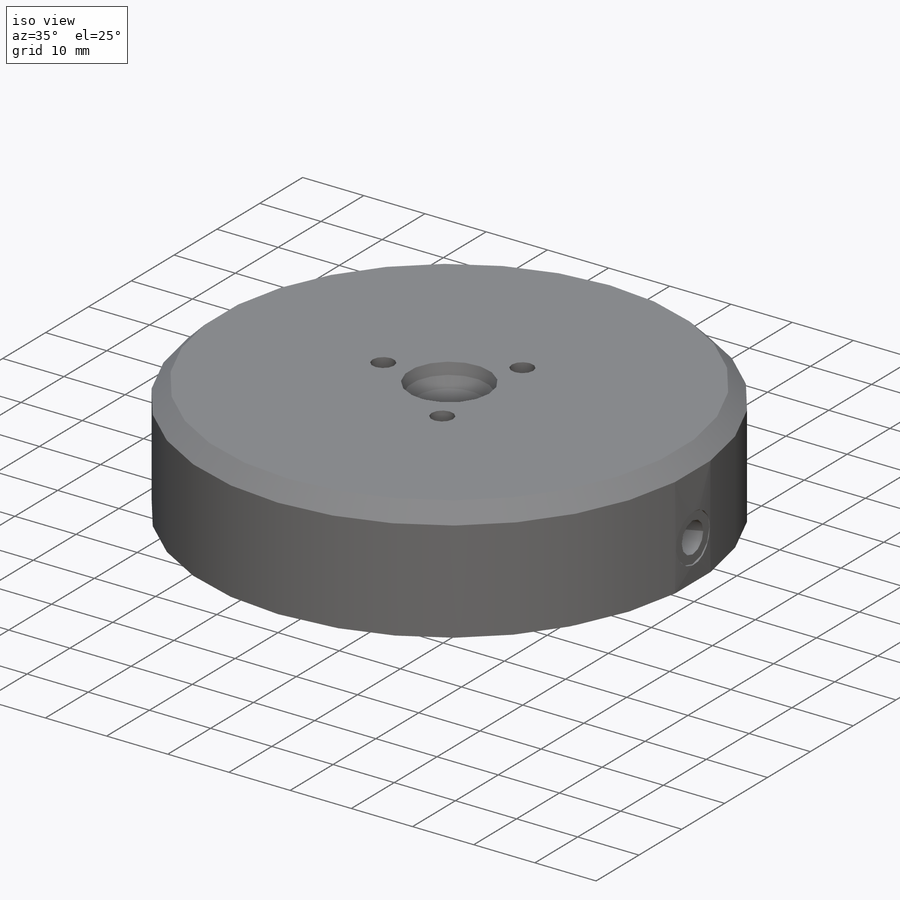
[diagram: iso view]
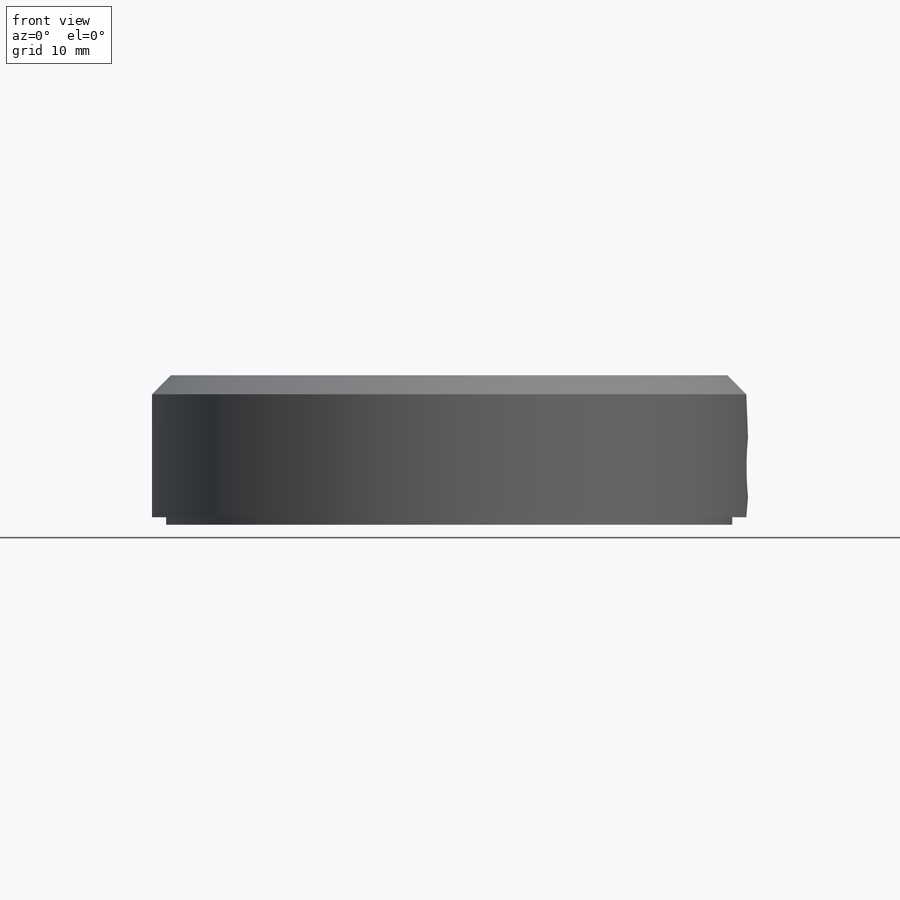
[diagram: front view]
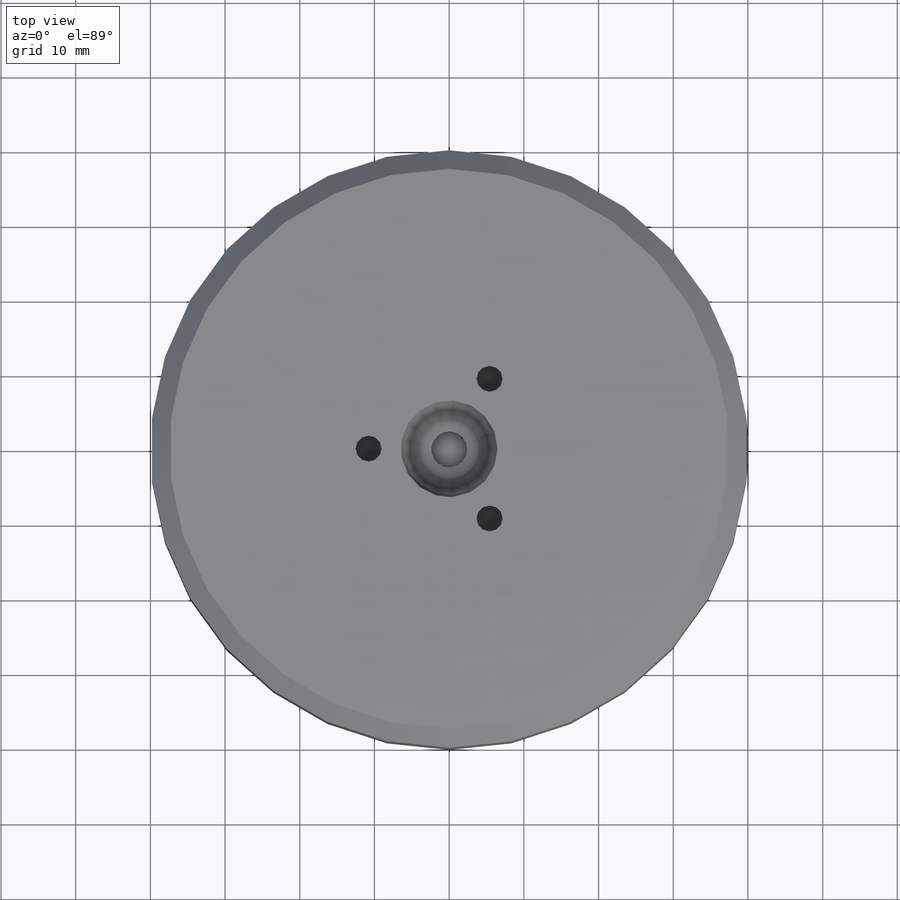
[diagram: top view]
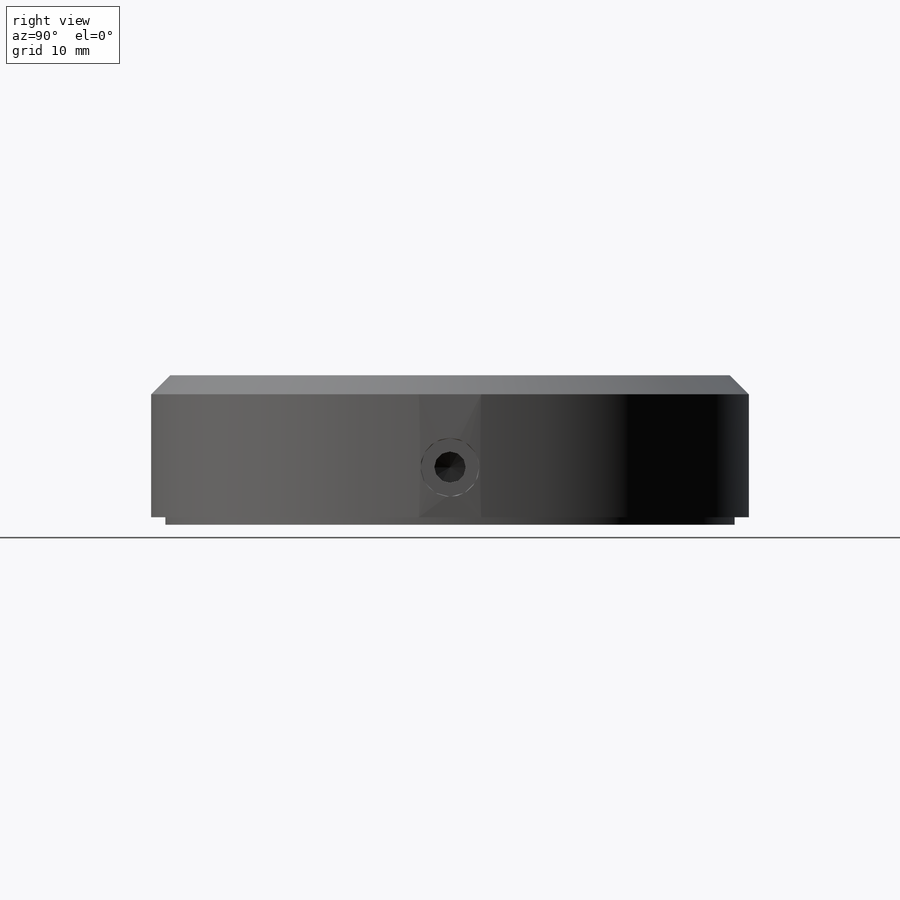
[diagram: right view]
SOLIDWORKS PART (.sldprt)
format: sldprt  version: not decoded by parser v0  size: 251,392 bytes
history: native  units: mm
features: sketch x9, hole x3, extrude x2, material x1, chamfer x1, pattern_circular x1, cut_revolve x1 (+15 scaffold rows collapsed)
feature tree (33):
  scaffold x15  (default folders/planes/origin — collapsed)
  material  "6061 Alloy"
  sketch  "Sketch1"  dims[D1=80.01mm D2=80.01mm]
  extrude  "Extrude1"  Depth=18.9992mm
  sketch  "Sketch2"  dims[D1=76.2mm]
  hole  "M5x0.8 Tapped Hole1"  Diameter=4.2mm Depth=35.56mm
  sketch  "3DSketch1"  dims[D1=12.319mm]
  sketch  "Sketch4"  dims[hole-wizard template sketch: 29 standard entries collapsed; hole parameters kept: c8.Tap Drill Depth=35.56mm c8.Thread Major Dia.=5.0mm c8.Thread Depth=7.62mm c8.D5=~14.816244mm c8.Drill Angle=118.0deg]
  hole  "Hole3"  Diameter=20mm Depth=100mm
  sketch  "3DSketch4"
  sketch  "Sketch8"  dims[c1.Hole Ø=20.0mm c1.Depth=100.0mm c1.Drill Angle=118.0deg c1.C.Sink Angle=90.0deg c1.C.Bore Ø=40.0mm c1.C.Bore Depth=20.0mm c1.Diameter=3.81mm c2.Depth=6.35mm c2.C-Bore Diameter=7.874mm c2.C-Bore Depth=0.254mm c2.Drill Angle=118.0deg]
  chamfer  "Chamfer1"  Distance=2.54mm Angle=45deg
  hole  "M3.5x0.6 Tapped Hole1"  Diameter=2.9mm Depth=9.652mm
  sketch  "Sketch10"  dims[D1=10.795mm]
  sketch  "Sketch9"  dims[hole-wizard template sketch: 28 standard entries collapsed; hole parameters kept: c8.Tap Drill Dia.=2.9mm c8.Tap Drill Depth=9.652mm c8.Thread Major Dia.=3.5mm c8.Thread Depth=6.35mm c8.D5=~14.816244mm c8.Drill Angle=118.0deg]
  pattern_circular  "CirPattern1"  Count=3 Angle=120deg
  extrude  "Extrude2"  Depth=1.00076mm
  sketch  "Sketch11"  dims[D1=6.5mm D2=0.508mm D3=6.2484mm D4=2.3876mm]
  cut_revolve  "Cut-Revolve1"  Angle=360deg
decode coverage: 16 of 17 modeling features carry decoded parameters
note: ~ marks probable driven/reference dimensions
note: suppression state not decoded; provenance and decode notes live in map.json
